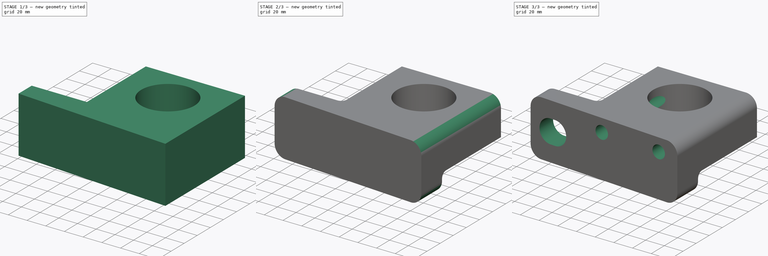
[diagram: build sequence overview — one tinted view per stage of 3, left to right]
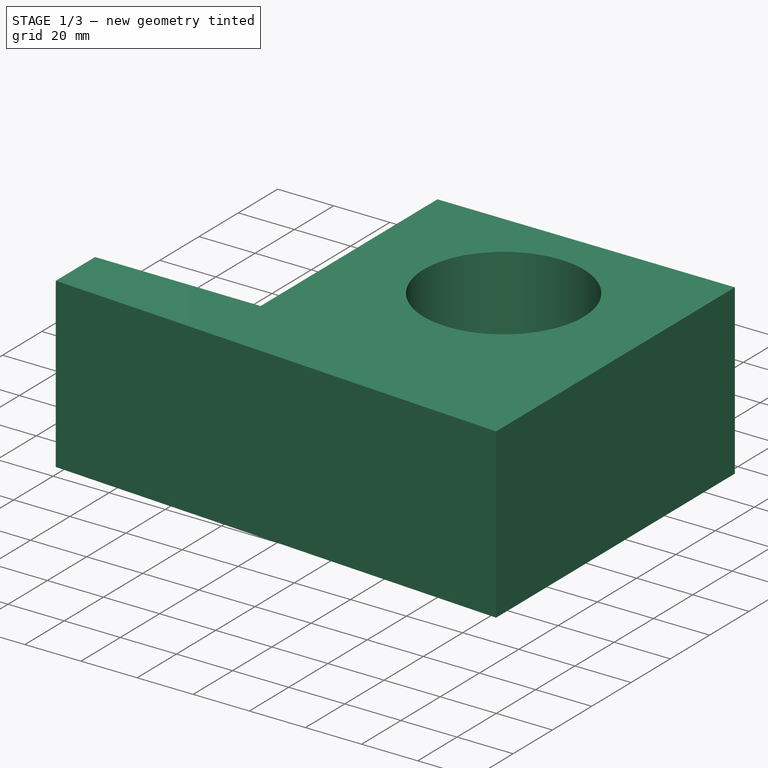
[diagram: stage 1 of 3 — iso view after this stage's code; geometry added in this stage tinted green]
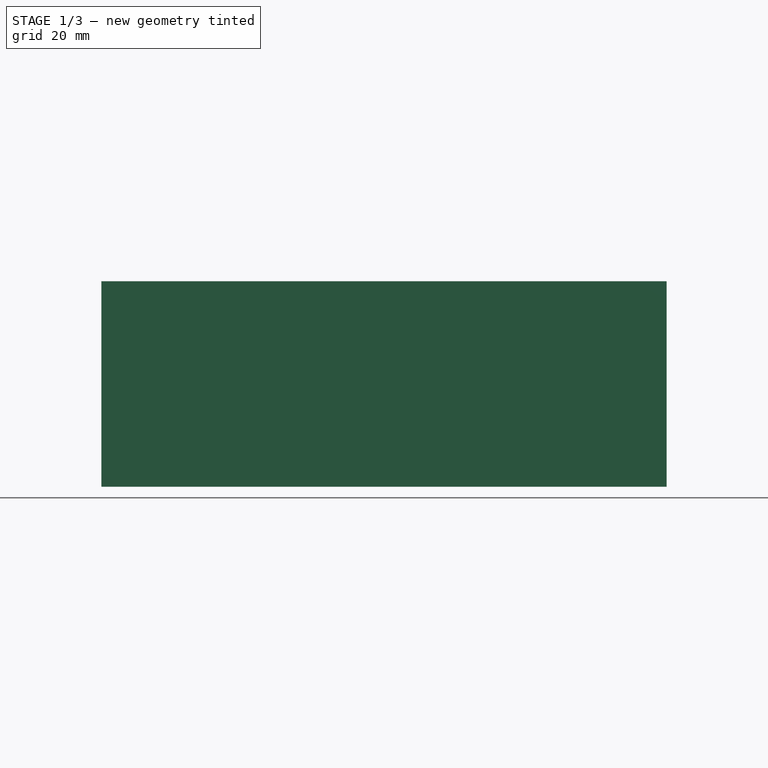
[diagram: stage 1 of 3 — front view after this stage's code; geometry added in this stage tinted green]
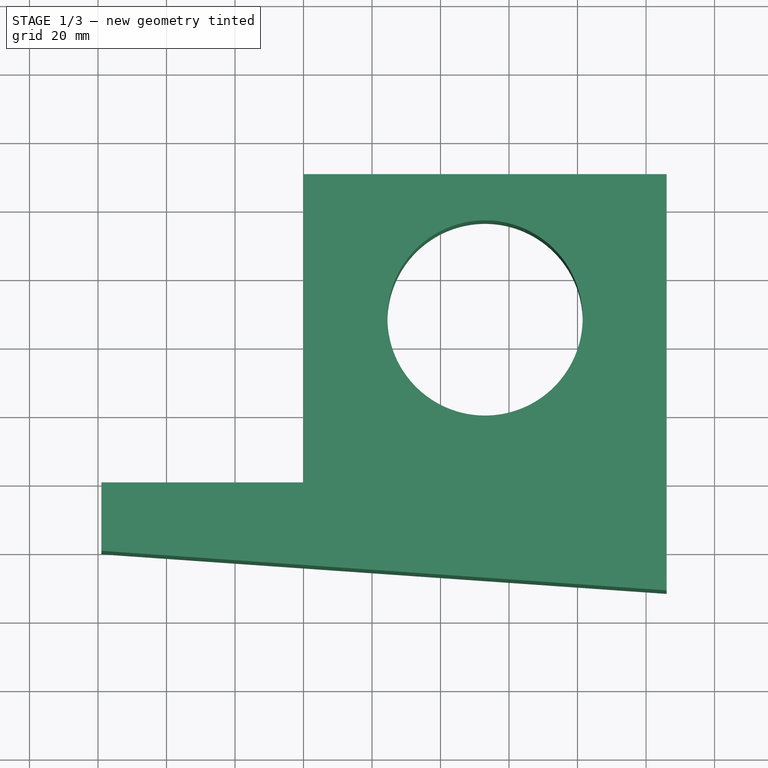
[diagram: stage 1 of 3 — top view after this stage's code; geometry added in this stage tinted green]
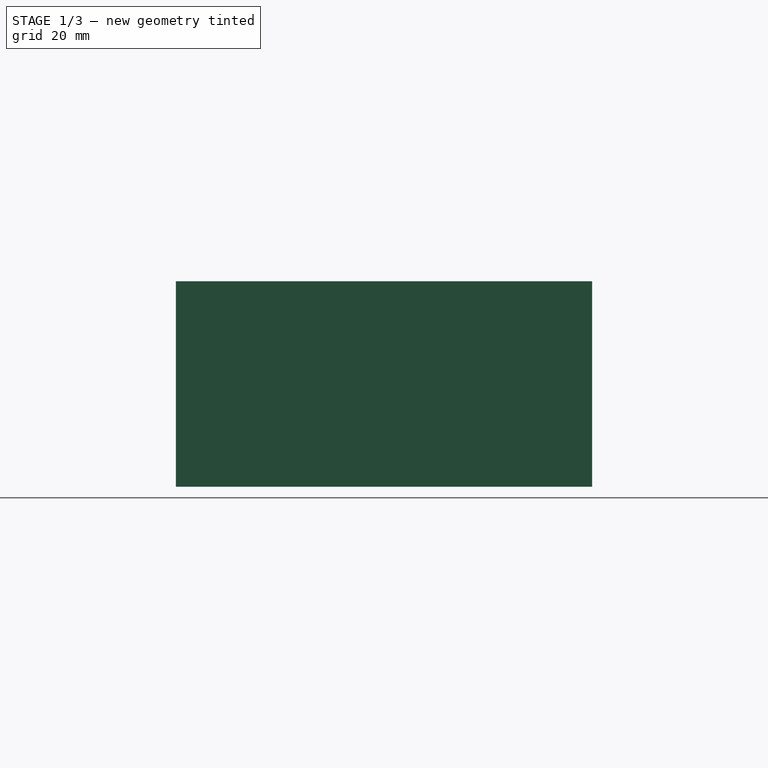
[diagram: stage 1 of 3 — right view after this stage's code; geometry added in this stage tinted green]
FCSTD DOCUMENT  (FreeCAD 1.1R42180 (Git))
Label: 25-06-02-4_DEGREE_BLOCK
License: Creative Commons Attribution-NonCommercial-ShareAlike 4.0
LicenseURL: https://creativecommons.org/licenses/by-nc-sa/4.0/
objects: Sketcher::SketchObject×5, PartDesign::Pocket×3, PartDesign::Fillet×2, App::Point×1, PartDesign::Pad×1, PartDesign::Hole×1, PartDesign::Body×1, App::TextDocument×1
note: 32 computed .brp shape members not serialized (recipe doc carries the construction recipe); baked Part::Feature solids carry a one-line shape summary decoded from their .brp

FEATURE [App::Point] Origin001  label="Origine"
  Role = Origin
FEATURE [Sketcher::SketchObject] Sketch
  ArcFitTolerance = 1e-06
  AttachmentSupport = -> [Origin]
  ExternalTypes = [0]
  FullyConstrained = true
  MakeInternals = false
  MapMode = 5
  sketch-geometry (6):
    g0: LineSegment StartX=-59 StartY=0 StartZ=0 EndX=-59 EndY=-20 EndZ=0
    g1: LineSegment StartX=-59 StartY=-20 StartZ=0 EndX=106 EndY=-31.5379 EndZ=0
    g2: LineSegment StartX=106 StartY=-31.5379 StartZ=0 EndX=106 EndY=90 EndZ=0
    g3: LineSegment StartX=-59 StartY=0 StartZ=0 EndX=0 EndY=0 EndZ=0
    g4: LineSegment StartX=0 StartY=0 StartZ=0 EndX=0 EndY=90 EndZ=0
    g5: LineSegment StartX=0 StartY=90 StartZ=0 EndX=106 EndY=90 EndZ=0
  constraints (17):
    c: Vertical(g0)
    c: Coincident(g0,g1)
    c: Coincident(g1,g2)
    c: Vertical(g2)
    c: Coincident(g0,g3)
    c: Coincident(g3,g4)
    c: Coincident(g4,g5)
    c: Coincident(g5,g2)
    c: Horizontal(g5)
    c: Horizontal(g3)
    c: Vertical(g4)
    c: DistanceX(g5,g5) = 106
    c: Distance(g1,g0) = 165
    c: DistanceY(g0,g0) = 20
    c: DistanceY(g4,g4) = 90
    c: Angle(g1,g-1) = 0.0698132
    c: Coincident(g3,g-1)
FEATURE [PartDesign::Pad] Pad
  Direction = (0,0,1)
  Length = 60
  Length2 = 10
  Profile = -> Sketch
  ReferenceAxis = -> Sketch [N_Axis]
  Refine = true
  Suppressed = false
  Type = 0
FEATURE [Sketcher::SketchObject] Sketch001
  ArcFitTolerance = 1e-06
  AttachmentSupport = -> [Pad]
  ExternalGeometry = -> [Pad]
  ExternalTypes = [0]
  FullyConstrained = true
  MakeInternals = false
  MapMode = 5
  Placement = pos=(0,0,60) rot=(0,0,1;0rad)
  sketch-geometry (2):
    g0: LineSegment [constr] StartX=53 StartY=90 StartZ=0 EndX=53 EndY=48 EndZ=0
    g1: Circle CenterX=53 CenterY=48 CenterZ=0 NormalX=0 NormalY=0 NormalZ=1 AngleXU=0 Radius=28.5
  constraints (5):
    c: Distance(g0) = 42
    c: Symmetric(g-3,g-3,g0)
    c: Vertical(g0)
    c: Diameter(g1) = 57
    c: Coincident(g1,g0)
FEATURE [PartDesign::Pocket] Pocket
  BaseFeature = -> Pad
  Direction = (0,0,-1)
  Length = 5
  Length2 = 5
  Profile = -> Sketch001
  ReferenceAxis = -> Sketch001 [N_Axis]
  Refine = true
  Suppressed = false
  Type = 1
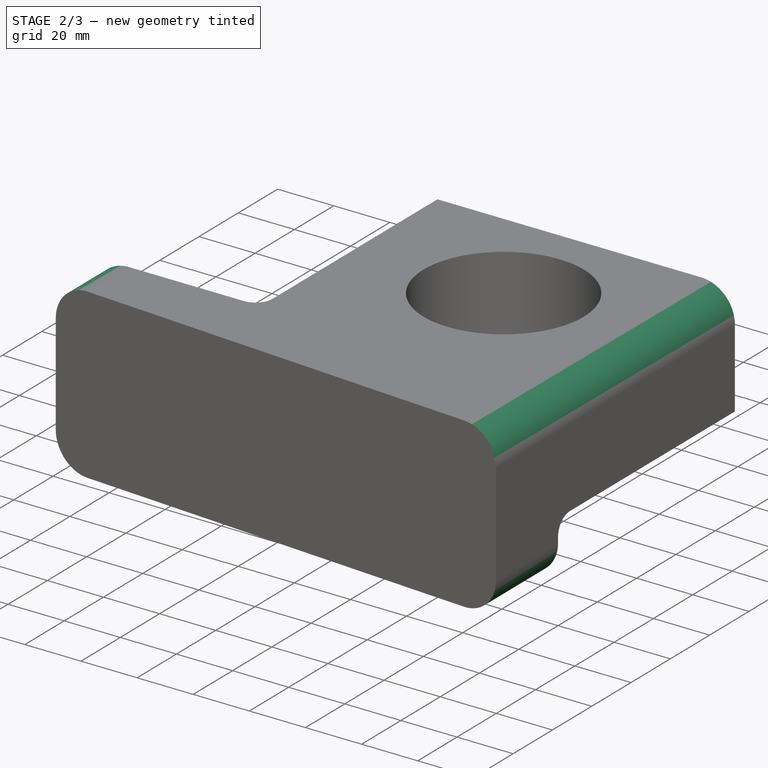
[diagram: stage 2 of 3 — iso view after this stage's code; geometry added in this stage tinted green]
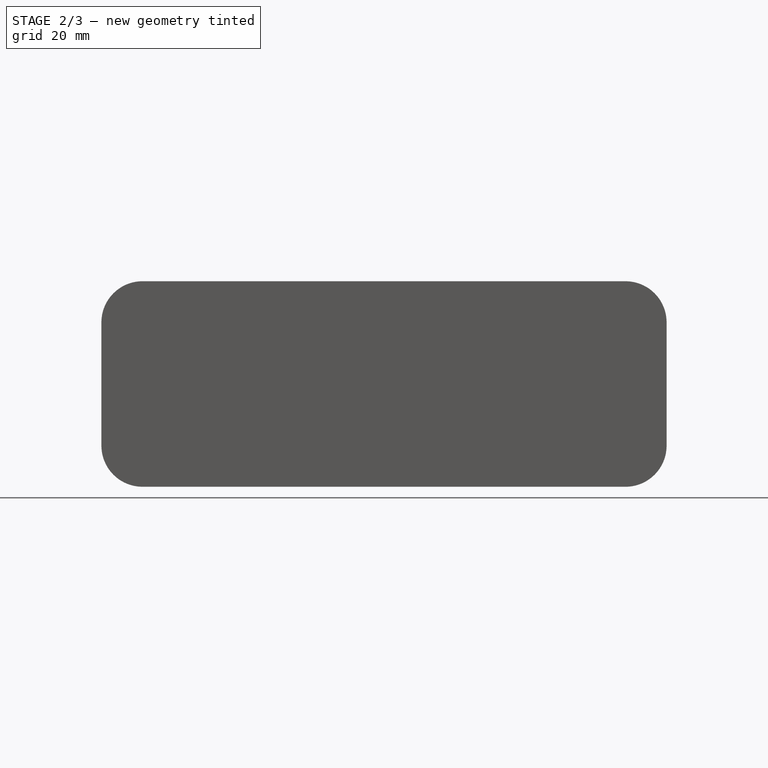
[diagram: stage 2 of 3 — front view after this stage's code; geometry added in this stage tinted green]
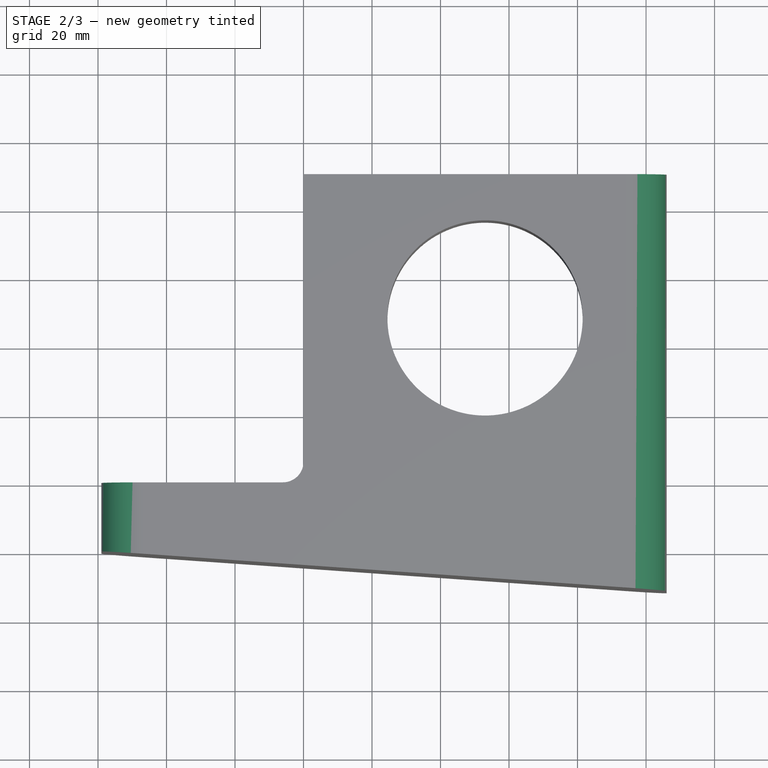
[diagram: stage 2 of 3 — top view after this stage's code; geometry added in this stage tinted green]
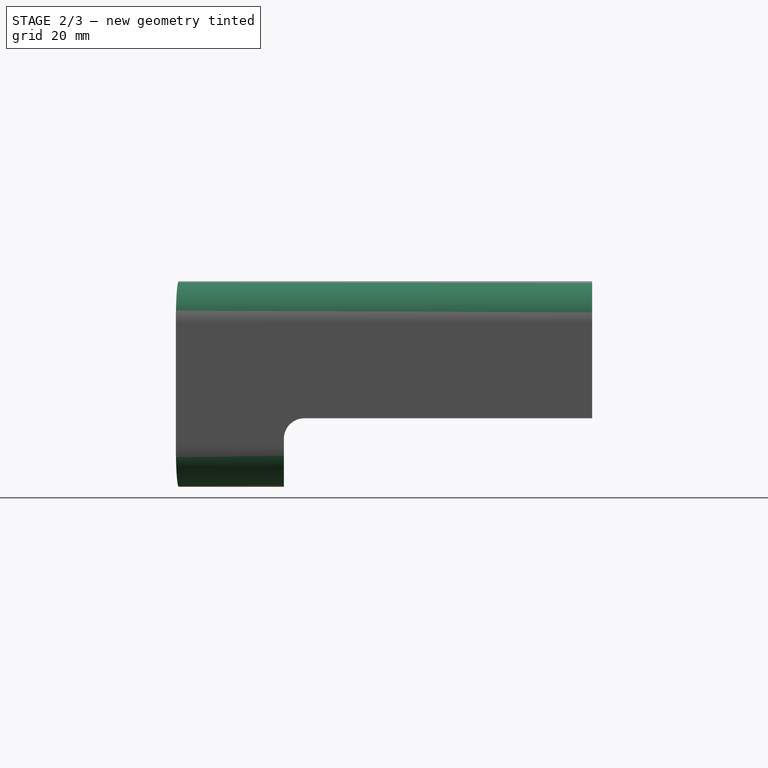
[diagram: stage 2 of 3 — right view after this stage's code; geometry added in this stage tinted green]
FEATURE [Sketcher::SketchObject] Sketch002
  ArcFitTolerance = 1e-06
  AttachmentSupport = -> [Pocket]
  ExternalGeometry = -> [Pocket]
  ExternalTypes = [0,0]
  FullyConstrained = true
  MakeInternals = false
  MapMode = 5
  Placement = pos=(106,0,0) rot=(0.57735,0.57735,0.57735;2.0944rad)
  sketch-geometry (4):
    g0: LineSegment StartX=90 StartY=0 StartZ=0 EndX=90 EndY=20 EndZ=0
    g1: LineSegment StartX=0 StartY=20 StartZ=0 EndX=0 EndY=0 EndZ=0
    g2: LineSegment StartX=0 StartY=0 StartZ=0 EndX=90 EndY=0 EndZ=0
    g3: LineSegment StartX=0 StartY=20 StartZ=0 EndX=90 EndY=20 EndZ=0
  constraints (11):
    c: Coincident(g1,g2)
    c: Coincident(g2,g0)
    c: Vertical(g0)
    c: Vertical(g1)
    c: DistanceX(g2,g2) = 90
    c: Coincident(g3,g1)
    c: Coincident(g3,g0)
    c: Coincident(g0,g-3)
    c: Horizontal(g2)
    c: Distance(g0,g-3) = 40
    c: Horizontal(g3)
FEATURE [PartDesign::Pocket] Pocket001
  BaseFeature = -> Pocket
  Direction = (-1,0,0)
  Length = 5
  Length2 = 5
  Profile = -> Sketch002
  ReferenceAxis = -> Sketch002 [N_Axis]
  Refine = true
  Suppressed = false
  Type = 1
FEATURE [PartDesign::Fillet] Fillet
  Base = -> Pocket001 [Edge12,Edge9,Edge3,Edge4,Edge15]
  BaseFeature = -> Pocket001
  Radius = 12
  Refine = true
  SupportTransform = false
  Suppressed = false
  UseAllEdges = false
FEATURE [PartDesign::Fillet] Fillet001
  Base = -> Fillet [Edge10]
  BaseFeature = -> Fillet
  Radius = 6
  Refine = true
  SupportTransform = false
  Suppressed = false
  UseAllEdges = false
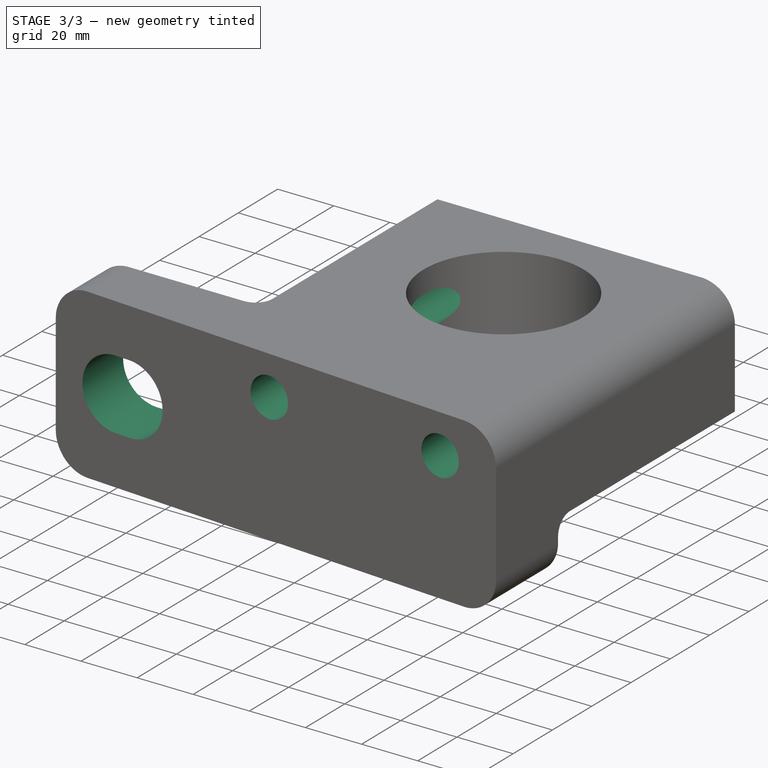
[diagram: stage 3 of 3 — iso view after this stage's code; geometry added in this stage tinted green]
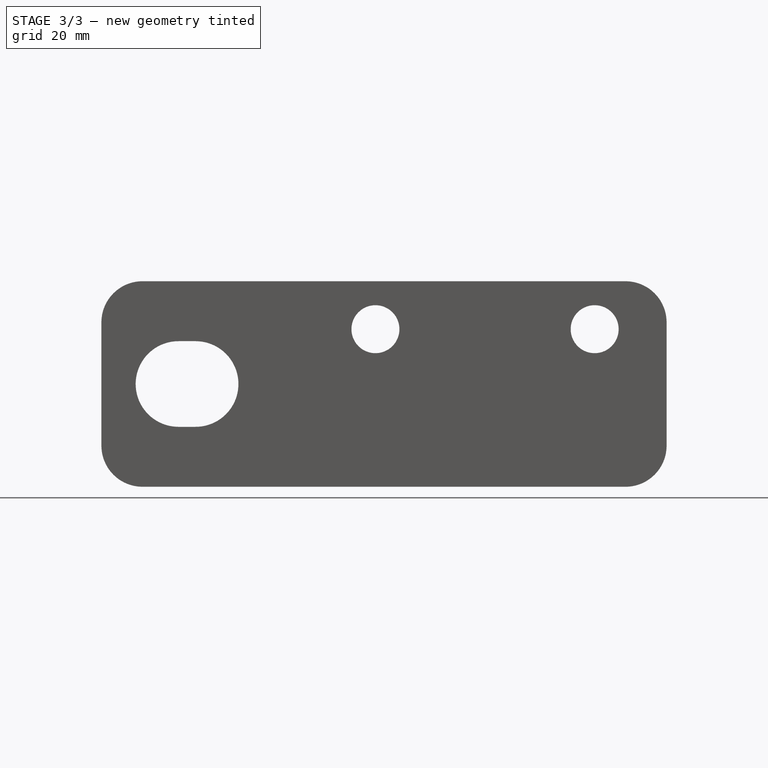
[diagram: stage 3 of 3 — front view after this stage's code; geometry added in this stage tinted green]
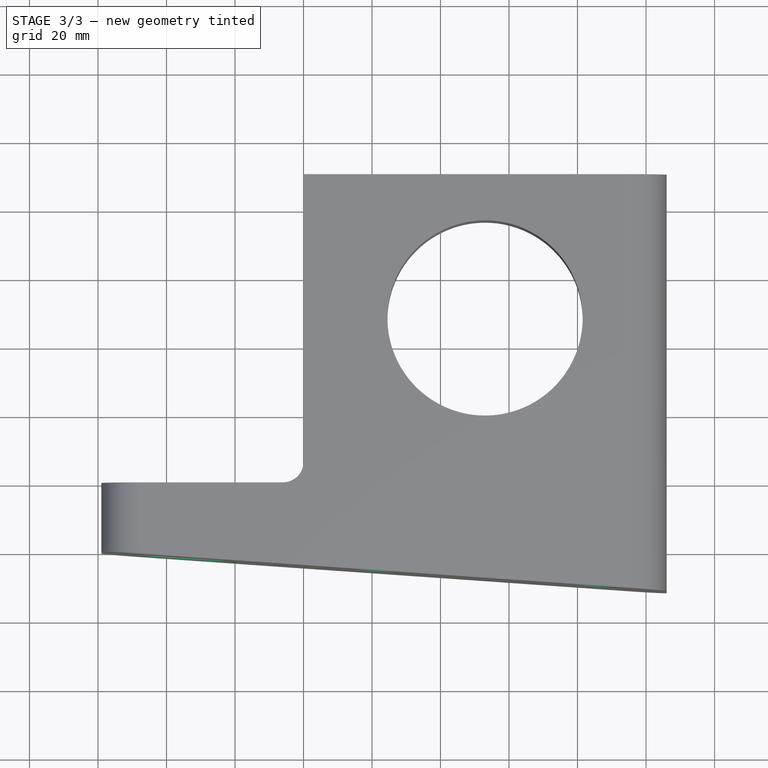
[diagram: stage 3 of 3 — top view after this stage's code; geometry added in this stage tinted green]
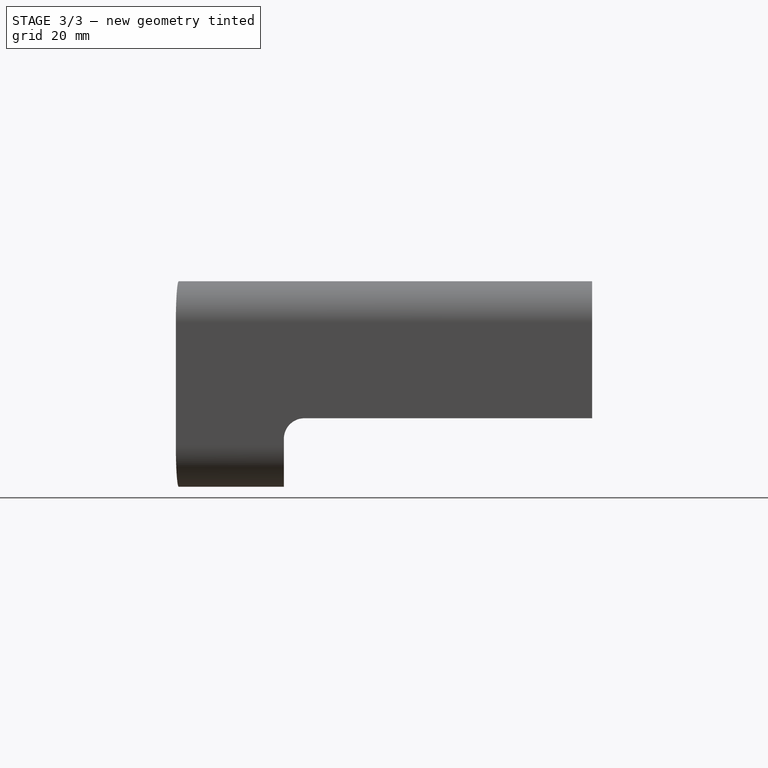
[diagram: stage 3 of 3 — right view after this stage's code; geometry added in this stage tinted green]
FEATURE [Sketcher::SketchObject] Sketch003
  ArcFitTolerance = 1e-06
  AttachmentSupport = -> [Fillet001]
  ExternalGeometry = -> [Fillet001,Fillet]
  ExternalTypes = [0,0,0]
  FullyConstrained = true
  MakeInternals = false
  MapMode = 5
  Placement = pos=(0,90,0) rot=(0,0.707107,0.707107;3.14159rad)
  sketch-geometry (4):
    g0: Circle CenterX=-85 CenterY=46 CenterZ=0 NormalX=0 NormalY=0 NormalZ=1 AngleXU=0 Radius=7
    g1: Circle CenterX=-21 CenterY=46 CenterZ=0 NormalX=0 NormalY=0 NormalZ=1 AngleXU=0 Radius=7
    g2: LineSegment [constr] StartX=-85 StartY=46 StartZ=0 EndX=-106 EndY=46 EndZ=0
    g3: LineSegment [constr] StartX=-21 StartY=46 StartZ=0 EndX=0 EndY=46 EndZ=0
  constraints (11):
    c: Equal(g0,g1)
    c: Diameter(g1) = 14
    c: DistanceY(g0,g-3) = 14
    c: Horizontal(g0,g1)
    c: DistanceX(g0,g1) = 64
    c: Coincident(g3,g1)
    c: Symmetric(g-5,g-5,g3)
    c: Horizontal(g2)
    c: Equal(g2,g3)
    c: PointOnObject(g2,g-4)
    c: Coincident(g2,g0)
FEATURE [PartDesign::Hole] Hole
  BaseFeature = -> Fillet001
  BaseProfileType = 7
  CustomThreadClearance = 0
  Depth = 431.337
  DepthType = 1
  Diameter = 14
  DrillForDepth = false
  DrillPoint = 1
  DrillPointAngle = 118
  HoleCutCountersinkAngle = 90
  HoleCutCustomValues = false
  HoleCutDepth = 0
  HoleCutDiameter = 0
  HoleCutType = 0
  ModelThread = false
  Profile = -> Sketch003
  Refine = true
  Suppressed = false
  Tapered = false
  TaperedAngle = 90
  ThreadClass = 0
  ThreadDepth = 431.337
  ThreadDepthType = 0
  ThreadDiameter = 14
  ThreadDirection = 0
  ThreadFit = 0
  ThreadSize = 0
  ThreadType = 0
  Threaded = false
  UseCustomThreadClearance = false
FEATURE [Sketcher::SketchObject] Sketch004
  ArcFitTolerance = 1e-06
  AttachmentSupport = -> [Hole]
  ExternalGeometry = -> [Hole]
  ExternalTypes = [0]
  FullyConstrained = true
  MakeInternals = false
  MapMode = 5
  Placement = pos=(0,0,0) rot=(0,0.707107,0.707107;3.14159rad)
  expr: Constraints[15] = 25 / 2
  sketch-geometry (7):
    g0: LineSegment [constr] StartX=59 StartY=30 StartZ=0 EndX=34 EndY=30 EndZ=0
    g1: ArcOfCircle CenterX=31.5 CenterY=30 CenterZ=0 NormalX=0 NormalY=0 NormalZ=1 AngleXU=0 Radius=12.5 StartAngle=1.5708 EndAngle=4.71239
    g2: ArcOfCircle CenterX=36.5 CenterY=30 CenterZ=0 NormalX=0 NormalY=0 NormalZ=1 AngleXU=0 Radius=12.5 StartAngle=4.71239 EndAngle=7.85398
    g3: LineSegment StartX=31.5 StartY=42.5 StartZ=0 EndX=36.5 EndY=42.5 EndZ=0
    g4: LineSegment StartX=31.5 StartY=17.5 StartZ=0 EndX=36.5 EndY=17.5 EndZ=0
    g5: GeomPoint X=19 Y=30 Z=0
    g6: GeomPoint X=49 Y=30 Z=0
  constraints (16):
    c: Symmetric(g-3,g-3,g0)
    c: Horizontal(g0)
    c: Tangent(g1,g3) = 1.5708
    c: Tangent(g1,g4) = -1.5708
    c: Tangent(g2,g3) = 1.5708
    c: Tangent(g2,g4) = -1.5708
    c: Equal(g1,g2)
    c: Symmetric(g1,g2,g0)
    c: Horizontal(g4)
    c: DistanceX(g0,g0) = 25
    c: PointOnObject(g5,g1)
    c: PointOnObject(g6,g2)
    c: PointOnObject(g6,g0)
    c: DistanceX(g5,g6) = 30
    c: Horizontal(g5,g6)
    c: Radius(g1) = 12.5
FEATURE [PartDesign::Pocket] Pocket002
  BaseFeature = -> Hole
  Direction = (0,-1,0)
  Length = 5
  Length2 = 5
  Profile = -> Sketch004
  ReferenceAxis = -> Sketch004 [N_Axis]
  Refine = true
  Suppressed = false
  Type = 1
FEATURE [PartDesign::Body] Body
  AllowCompound = true
  Group = -> [Sketch,Pad,Sketch001,Pocket,Sketch002,Pocket001,Fillet,Fillet001,Sketch003,Hole,Sketch004,Pocket002]
  Origin = -> Origin
  Tip = -> Pocket002
FEATURE [App::TextDocument] Text_document  label="Text document"
  Text = https://www.youtube.com/watch?v=vT-nWArNubY&t=2177s\n\n1060 ALUM 2700 kg/m3\n\n1.2915 kg
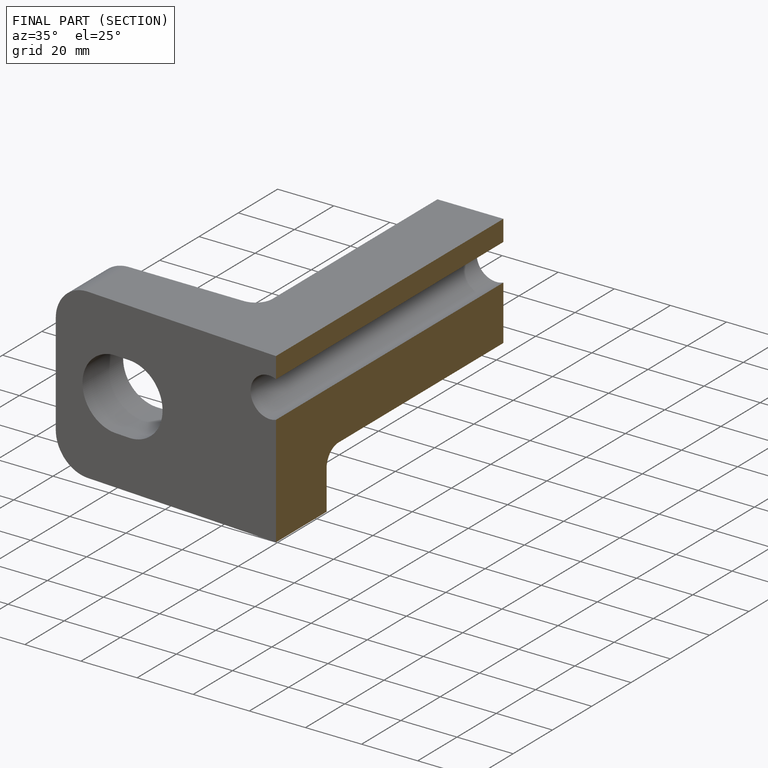
[diagram: finished part — half-section view (interior)]
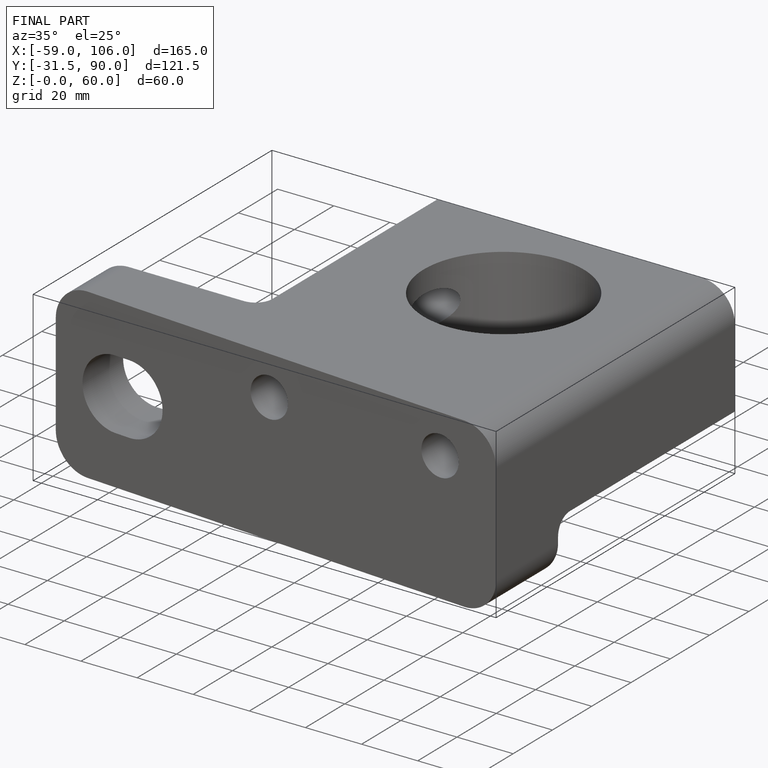
[diagram: finished part — iso view with bounding-box wireframe]
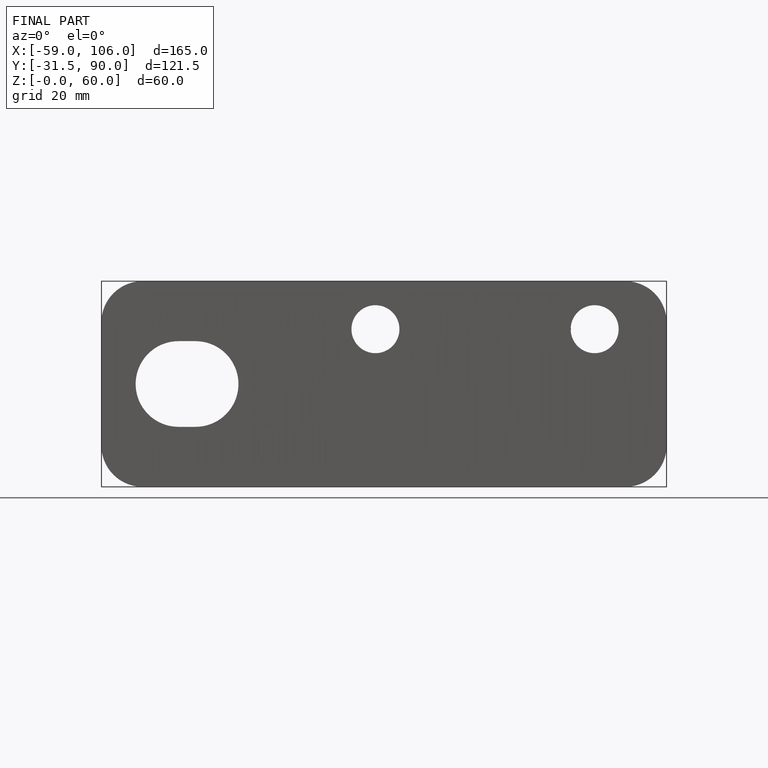
[diagram: finished part — front view with bounding-box wireframe]
